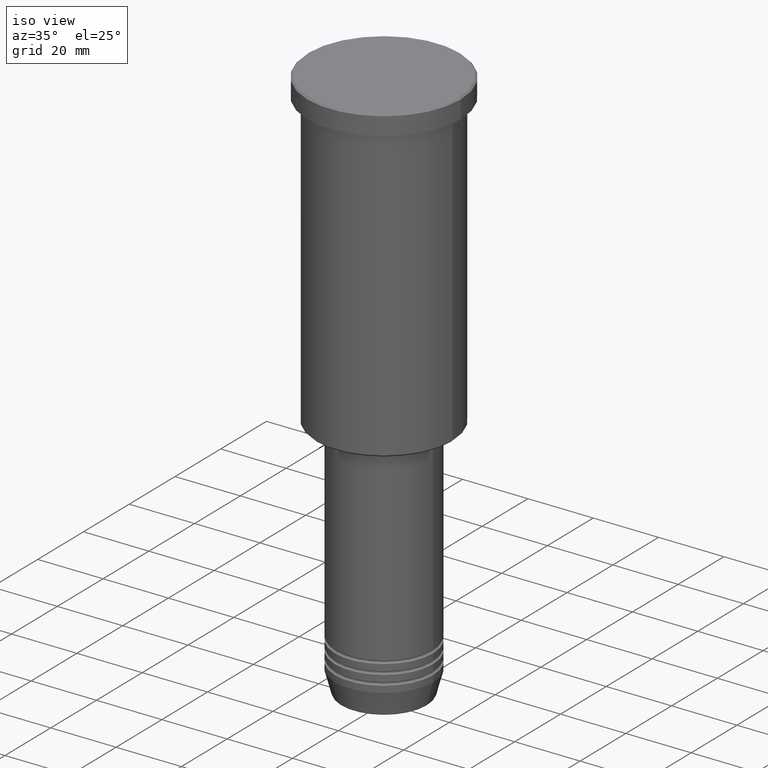
[diagram: clean part render]
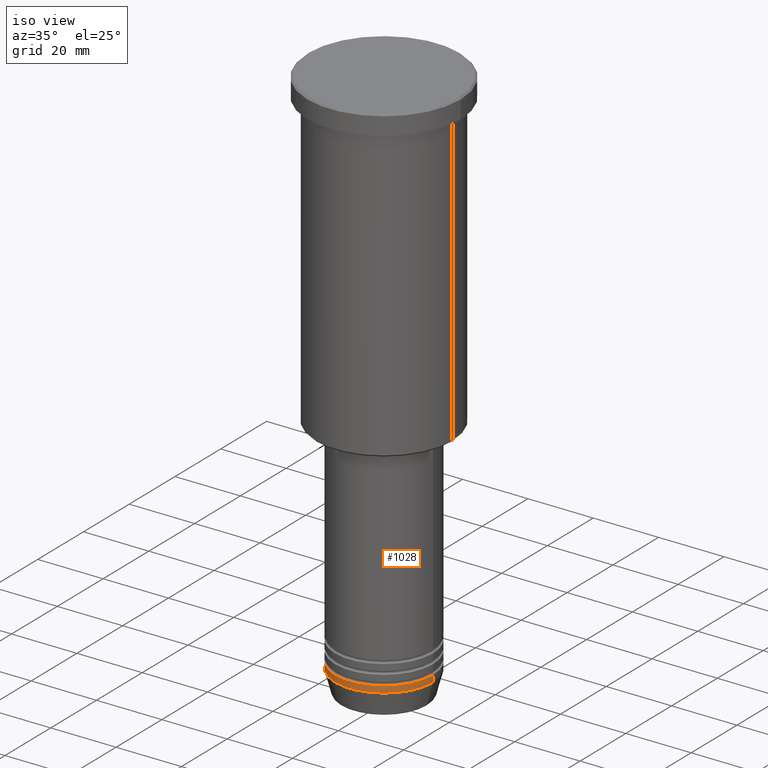
[diagram: same view with one face highlighted and labeled with its STEP entity id]
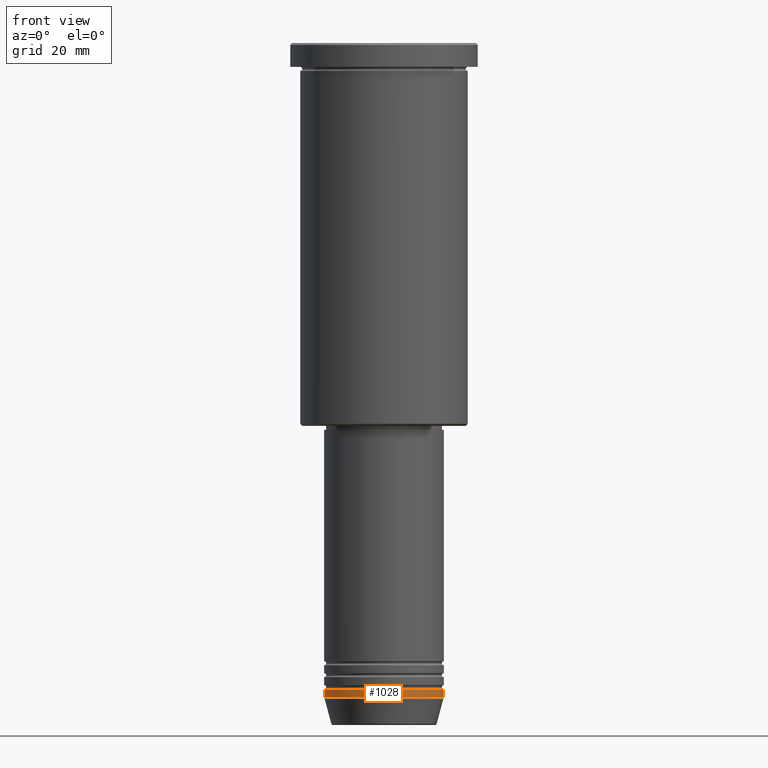
[diagram: same view with one face highlighted and labeled with its STEP entity id]
A machine part, iso view. The second image highlights one B-rep face of the part: STEP entity #1028.
A second angle (front view) of the same face is appended — the face is thin or edge-on in the first view.
In plain terms, the highlighted cylindrical surface (partial cylindrical patch) has radius 15 mm, axis along (-0, -0, 1).
Its self-contained STEP definition (entity closure, byte-faithful):
#20 = CARTESIAN_POINT ( 'NONE',  ( 0.000000000000000000, 0.000000000000000000, -162.0000000000000000 ) ) ;
#39 = VECTOR ( 'NONE', #1142, 1000.000000000000000 ) ;
#81 = CIRCLE ( 'NONE', #400, 15.00000000000000000 ) ;
#148 = CARTESIAN_POINT ( 'NONE',  ( 15.00000000000000000, 0.000000000000000000, 0.000000000000000000 ) ) ;
#200 = CYLINDRICAL_SURFACE ( 'NONE', #304, 15.00000000000000000 ) ;
#215 = ORIENTED_EDGE ( 'NONE', *, *, #419, .T. ) ;
#238 = ORIENTED_EDGE ( 'NONE', *, *, #468, .F. ) ;
#304 = AXIS2_PLACEMENT_3D ( 'NONE', #738, #361, #372 ) ;
#315 = DIRECTION ( 'NONE',  ( -0.000000000000000000, -0.000000000000000000, 1.000000000000000000 ) ) ;
#361 = DIRECTION ( 'NONE',  ( -0.000000000000000000, -0.000000000000000000, 1.000000000000000000 ) ) ;
#372 = DIRECTION ( 'NONE',  ( 1.000000000000000000, 0.000000000000000000, 0.000000000000000000 ) ) ;
#400 = AXIS2_PLACEMENT_3D ( 'NONE', #20, #568, #931 ) ;
#419 = EDGE_CURVE ( 'NONE', #618, #699, #778, .T. ) ;
#468 = EDGE_CURVE ( 'NONE', #1050, #766, #503, .T. ) ;
#503 = LINE ( 'NONE', #948, #39 ) ;
#539 = CARTESIAN_POINT ( 'NONE',  ( 15.00000000000000000, 0.000000000000000000, -164.0000000000000000 ) ) ;
#568 = DIRECTION ( 'NONE',  ( -0.000000000000000000, -0.000000000000000000, 1.000000000000000000 ) ) ;
#618 = VERTEX_POINT ( 'NONE', #539 ) ;
#643 = CARTESIAN_POINT ( 'NONE',  ( -15.00000000000000000, 1.836970198721029589E-15, -164.0000000000000000 ) ) ;
#649 = CARTESIAN_POINT ( 'NONE',  ( -15.00000000000000000, 1.836970198721029589E-15, -162.0000000000000000 ) ) ;
#663 = CARTESIAN_POINT ( 'NONE',  ( 15.00000000000000000, 0.000000000000000000, -162.0000000000000000 ) ) ;
#666 = CARTESIAN_POINT ( 'NONE',  ( 0.000000000000000000, 0.000000000000000000, -164.0000000000000000 ) ) ;
#694 = CIRCLE ( 'NONE', #1093, 15.00000000000000000 ) ;
#699 = VERTEX_POINT ( 'NONE', #663 ) ;
#726 = FACE_OUTER_BOUND ( 'NONE', #808, .T. ) ;
#738 = CARTESIAN_POINT ( 'NONE',  ( 0.000000000000000000, 0.000000000000000000, 0.000000000000000000 ) ) ;
#766 = VERTEX_POINT ( 'NONE', #649 ) ;
#769 = EDGE_CURVE ( 'NONE', #766, #699, #81, .T. ) ;
#778 = LINE ( 'NONE', #148, #915 ) ;
#808 = EDGE_LOOP ( 'NONE', ( #238, #1063, #215, #946 ) ) ;
#915 = VECTOR ( 'NONE', #315, 1000.000000000000000 ) ;
#931 = DIRECTION ( 'NONE',  ( 1.000000000000000000, 0.000000000000000000, 0.000000000000000000 ) ) ;
#936 = DIRECTION ( 'NONE',  ( 1.000000000000000000, 0.000000000000000000, 0.000000000000000000 ) ) ;
#946 = ORIENTED_EDGE ( 'NONE', *, *, #769, .F. ) ;
#948 = CARTESIAN_POINT ( 'NONE',  ( -15.00000000000000000, 1.836970198721029589E-15, 0.000000000000000000 ) ) ;
#1028 = ADVANCED_FACE ( 'NONE', ( #726 ), #200, .T. ) ;
#1050 = VERTEX_POINT ( 'NONE', #643 ) ;
#1063 = ORIENTED_EDGE ( 'NONE', *, *, #1075, .T. ) ;
#1075 = EDGE_CURVE ( 'NONE', #1050, #618, #694, .T. ) ;
#1093 = AXIS2_PLACEMENT_3D ( 'NONE', #666, #1131, #936 ) ;
#1131 = DIRECTION ( 'NONE',  ( -0.000000000000000000, -0.000000000000000000, 1.000000000000000000 ) ) ;
#1142 = DIRECTION ( 'NONE',  ( -0.000000000000000000, -0.000000000000000000, 1.000000000000000000 ) ) ;